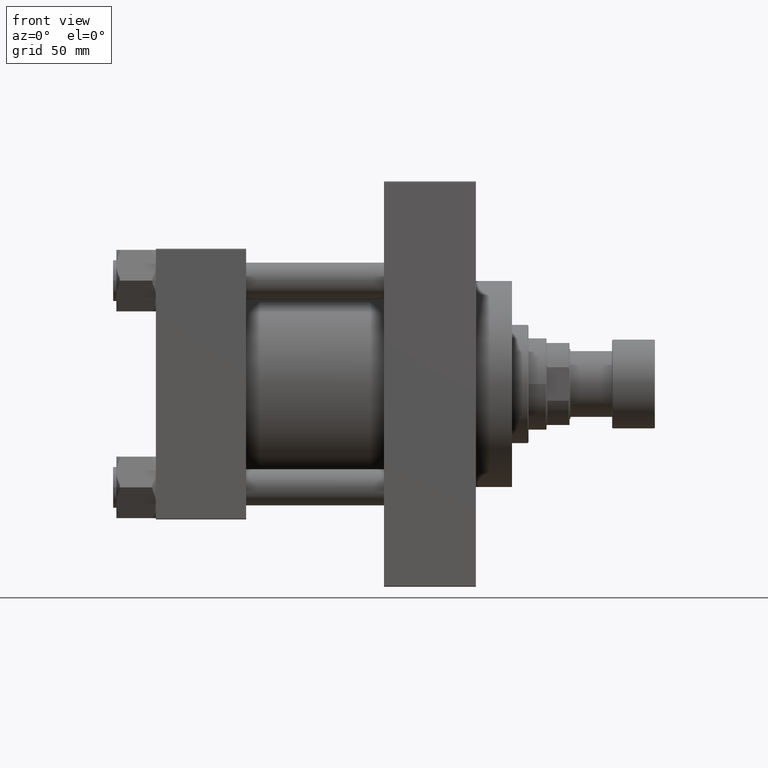
[diagram: clean part render]
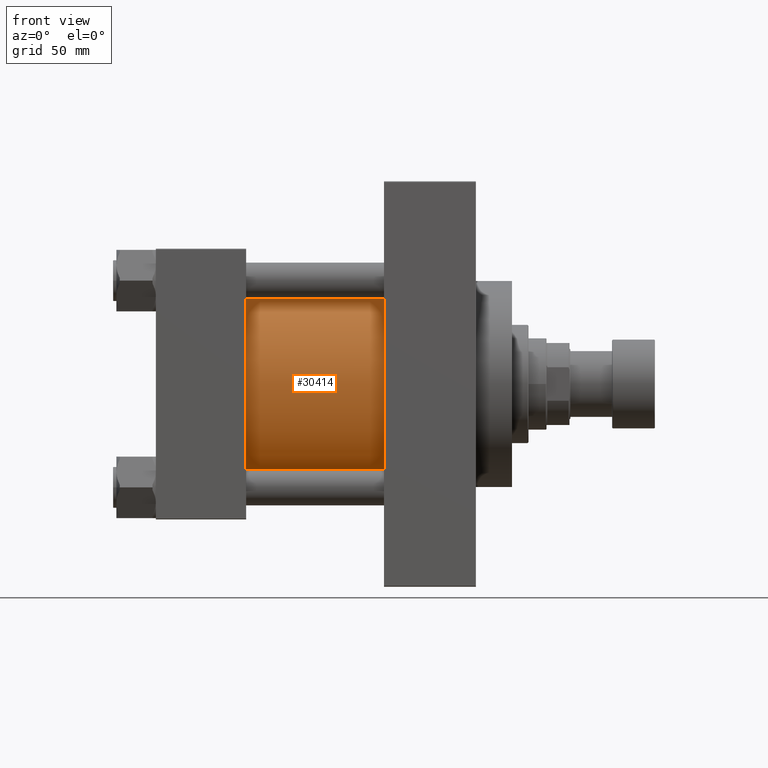
[diagram: same view with one face highlighted and labeled with its STEP entity id]
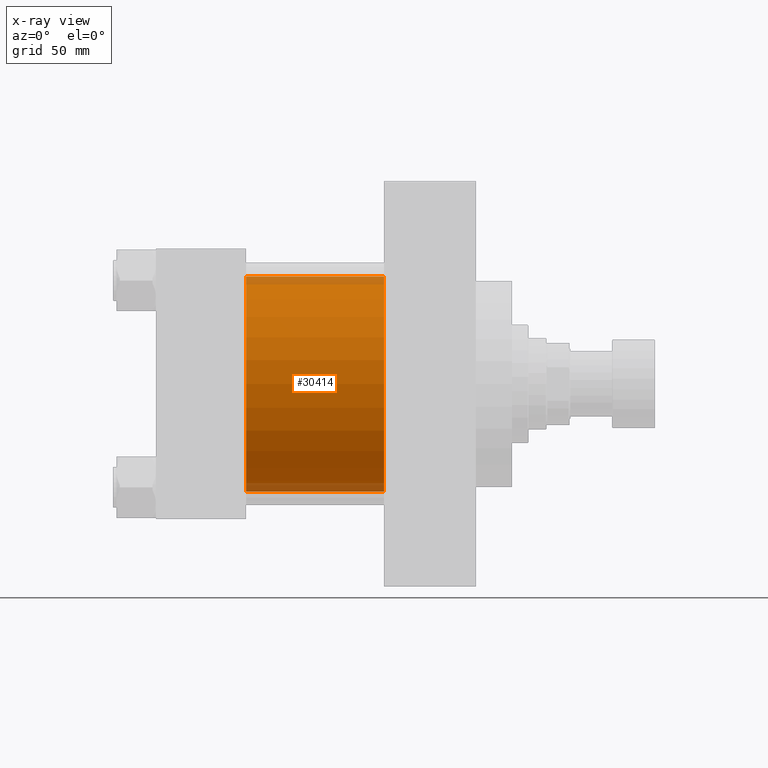
[diagram: x-ray of the same camera — body ghosted, the highlighted face saturated]
A machine part, front view. The second image highlights one B-rep face of the part: STEP entity #30414.
The next image is the same camera in x-ray: the body ghosted, the highlighted face saturated — about 8% of this face is hidden behind the body in this view.
In plain terms, the highlighted cylindrical surface (partial cylindrical patch) has radius 65.5 mm, axis along (-1, -0, -0).
Its self-contained STEP definition (entity closure, byte-faithful):
#410 = DIRECTION ( 'NONE',  ( -1.000000000000000000, -0.000000000000000000, -0.000000000000000000 ) ) ;
#3579 = CARTESIAN_POINT ( 'NONE',  ( 139.0000000000000000, -2.602085213965210642E-15, 0.000000000000000000 ) ) ;
#4379 = CARTESIAN_POINT ( 'NONE',  ( 54.99999999999999289, -2.602085213965210642E-15, 65.50000000000001421 ) ) ;
#4932 = CARTESIAN_POINT ( 'NONE',  ( 139.0000000000000000, 5.419351320449953395E-15, -65.50000000000001421 ) ) ;
#6511 = AXIS2_PLACEMENT_3D ( 'NONE', #25018, #42812, #35739 ) ;
#9693 = LINE ( 'NONE', #13359, #18407 ) ;
#10222 = VERTEX_POINT ( 'NONE', #4379 ) ;
#10358 = DIRECTION ( 'NONE',  ( 1.000000000000000000, 0.000000000000000000, 0.000000000000000000 ) ) ;
#11458 = VECTOR ( 'NONE', #15908, 1000.000000000000000 ) ;
#13303 = AXIS2_PLACEMENT_3D ( 'NONE', #3579, #410, #19182 ) ;
#13359 = CARTESIAN_POINT ( 'NONE',  ( 139.0000000000000000, -2.602085213965210642E-15, 65.50000000000001421 ) ) ;
#14627 = CARTESIAN_POINT ( 'NONE',  ( 54.99999999999999289, 5.419351320449953395E-15, -65.50000000000001421 ) ) ;
#15908 = DIRECTION ( 'NONE',  ( -1.000000000000000000, -0.000000000000000000, -0.000000000000000000 ) ) ;
#18407 = VECTOR ( 'NONE', #38201, 1000.000000000000000 ) ;
#19182 = DIRECTION ( 'NONE',  ( 0.000000000000000000, 0.000000000000000000, 1.000000000000000000 ) ) ;
#19208 = ORIENTED_EDGE ( 'NONE', *, *, #19624, .T. ) ;
#19624 = EDGE_CURVE ( 'NONE', #34182, #10222, #9693, .T. ) ;
#20314 = CARTESIAN_POINT ( 'NONE',  ( 139.0000000000000000, 5.419351320449953395E-15, -65.50000000000001421 ) ) ;
#21283 = CIRCLE ( 'NONE', #6511, 65.50000000000001421 ) ;
#21660 = EDGE_CURVE ( 'NONE', #43753, #44262, #38288, .T. ) ;
#22199 = EDGE_LOOP ( 'NONE', ( #42030, #44474, #19208, #27941 ) ) ;
#24963 = CARTESIAN_POINT ( 'NONE',  ( 139.0000000000000000, -2.602085213965210642E-15, 0.000000000000000000 ) ) ;
#25018 = CARTESIAN_POINT ( 'NONE',  ( 54.99999999999999289, -2.602085213965210642E-15, 0.000000000000000000 ) ) ;
#25089 = CARTESIAN_POINT ( 'NONE',  ( 139.0000000000000000, -2.602085213965210642E-15, 65.50000000000001421 ) ) ;
#25786 = AXIS2_PLACEMENT_3D ( 'NONE', #24963, #10358, #48065 ) ;
#27941 = ORIENTED_EDGE ( 'NONE', *, *, #39578, .T. ) ;
#30349 = CIRCLE ( 'NONE', #25786, 65.50000000000001421 ) ;
#30414 = ADVANCED_FACE ( 'NONE', ( #36948 ), #41075, .T. ) ;
#32719 = EDGE_CURVE ( 'NONE', #34182, #43753, #30349, .T. ) ;
#34182 = VERTEX_POINT ( 'NONE', #25089 ) ;
#35739 = DIRECTION ( 'NONE',  ( 0.000000000000000000, 0.000000000000000000, 1.000000000000000000 ) ) ;
#36948 = FACE_OUTER_BOUND ( 'NONE', #22199, .T. ) ;
#38201 = DIRECTION ( 'NONE',  ( -1.000000000000000000, -0.000000000000000000, -0.000000000000000000 ) ) ;
#38288 = LINE ( 'NONE', #4932, #11458 ) ;
#39578 = EDGE_CURVE ( 'NONE', #10222, #44262, #21283, .T. ) ;
#41075 = CYLINDRICAL_SURFACE ( 'NONE', #13303, 65.50000000000001421 ) ;
#42030 = ORIENTED_EDGE ( 'NONE', *, *, #21660, .F. ) ;
#42812 = DIRECTION ( 'NONE',  ( 1.000000000000000000, -0.000000000000000000, -0.000000000000000000 ) ) ;
#43753 = VERTEX_POINT ( 'NONE', #20314 ) ;
#44262 = VERTEX_POINT ( 'NONE', #14627 ) ;
#44474 = ORIENTED_EDGE ( 'NONE', *, *, #32719, .F. ) ;
#48065 = DIRECTION ( 'NONE',  ( 0.000000000000000000, 0.000000000000000000, -1.000000000000000000 ) ) ;